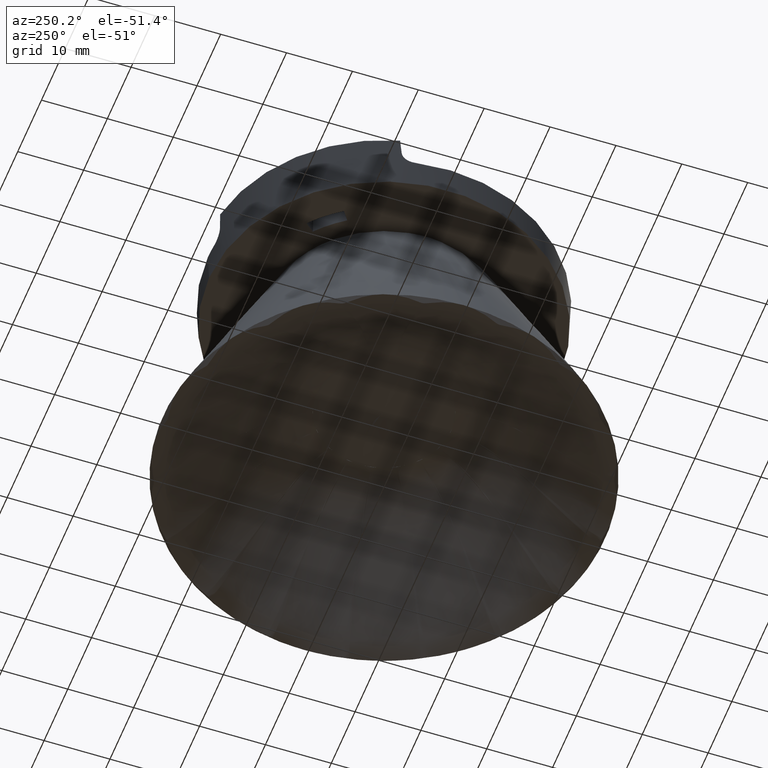
[diagram: clean part render]
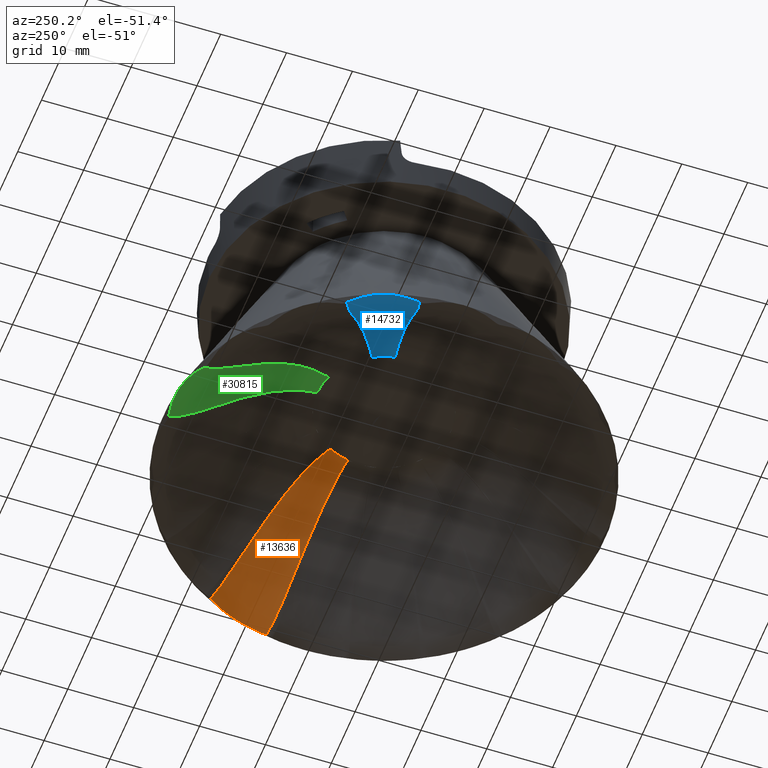
[diagram: same view with three faces highlighted in distinct colors, each labeled with its STEP entity id]
A machine part, auxiliary view with three faces highlighted in distinct colors.
Their STEP definitions:

[orange] entity #13636 — the highlighted face is a freeform B-spline surface patch.
#535 = CARTESIAN_POINT ( 'NONE',  ( 23.58123781146841600, -4.334185287929386700, 32.24962824037048400 ) ) ;
#632 = CARTESIAN_POINT ( 'NONE',  ( 10.60070841466913700, -1.988380848953729800, 24.10555495026253700 ) ) ;
#916 = VERTEX_POINT ( 'NONE', #26648 ) ;
#1146 = CARTESIAN_POINT ( 'NONE',  ( 27.17988131277490600, -8.109022413117987300, 37.81186950525385300 ) ) ;
#1346 = B_SPLINE_CURVE_WITH_KNOTS ( 'NONE', 3,
 ( #2800, #17037, #5210, #21820, #7600, #24223, #9988, #26590 ),
 .UNSPECIFIED., .F., .F.,
 ( 4, 2, 2, 4 ),
 ( 0.0007042587947961072200, 0.003373889748254508800, 0.004708705224983712700, 0.006043520701712917100 ),
 .UNSPECIFIED. ) ;
#1505 = CARTESIAN_POINT ( 'NONE',  ( 20.85018081101468100, -11.83751816375395000, 32.24956834300660100 ) ) ;
#1615 = CARTESIAN_POINT ( 'NONE',  ( 28.77713235196742400, -16.00863592587846500, 39.61515855658609600 ) ) ;
#2800 = CARTESIAN_POINT ( 'NONE',  ( 32.33471514826145900, -6.234257525220351100, 39.61515855658606700 ) ) ;
#2830 = CARTESIAN_POINT ( 'NONE',  ( 31.80912414234364500, -6.107643533814600000, 39.39180819655563700 ) ) ;
#2932 = CARTESIAN_POINT ( 'NONE',  ( 21.03219458561637000, -3.839103660257502200, 29.90732477501512300 ) ) ;
#3079 = VERTEX_POINT ( 'NONE', #18777 ) ;
#3334 = CARTESIAN_POINT ( 'NONE',  ( 29.31692109980526700, -16.30960618003984300, 39.79966890645383200 ) ) ;
#3552 = CARTESIAN_POINT ( 'NONE',  ( 15.05238420941136600, -13.56635157188961400, 25.69935888278798700 ) ) ;
#3617 = ORIENTED_EDGE ( 'NONE', *, *, #7662, .T. ) ;
#3799 = CARTESIAN_POINT ( 'NONE',  ( 10.63719521302469000, -6.022486237975413400, 24.42143948671519400 ) ) ;
#3899 = CARTESIAN_POINT ( 'NONE',  ( 30.10669219288953600, -14.23625910929125000, 39.21594549743795700 ) ) ;
#3906 = CARTESIAN_POINT ( 'NONE',  ( 23.07450769714963100, -13.04976545807081800, 34.66040913184517800 ) ) ;
#4384 = B_SPLINE_CURVE_WITH_KNOTS ( 'NONE', 3,
 ( #5447, #26820, #29210, #14991 ),
 .UNSPECIFIED., .F., .F.,
 ( 4, 4 ),
 ( 0.003603191525028641600, 0.005255104246981508200 ),
 .UNSPECIFIED. ) ;
#4565 = VERTEX_POINT ( 'NONE', #20241 ) ;
#4954 = CARTESIAN_POINT ( 'NONE',  ( 10.01613857177079800, -1.893099987472324900, 24.05268427374969400 ) ) ;
#4991 = EDGE_CURVE ( 'NONE', #21506, #916, #20814, .T. ) ;
#5210 = CARTESIAN_POINT ( 'NONE',  ( 32.28608939052563900, -7.985780494205993600, 39.27271433132516900 ) ) ;
#5243 = CARTESIAN_POINT ( 'NONE',  ( 31.06557714103936600, -5.930804997304113300, 38.96838497587685900 ) ) ;
#5343 = CARTESIAN_POINT ( 'NONE',  ( 18.36243551743603000, -3.338796146777106800, 27.73796040772611000 ) ) ;
#5344 = B_SPLINE_CURVE_WITH_KNOTS ( 'NONE', 3,
 ( #14698, #7425, #2830, #19447, #5243, #21851, #7632, #24256, #10017, #26622, #12425, #29014, #14799, #535, #17170, #2932, #19541, #5343, #21954, #7727, #24366, #10116, #26725, #12525, #29114, #14896, #632, #17272 ),
 .UNSPECIFIED., .F., .F.,
 ( 4, 2, 2, 2, 2, 2, 2, 2, 2, 2, 2, 2, 2, 4 ),
 ( 3.054599421857722200E-015, 0.0008735591537225678700, 0.001747118307442081100, 0.003494236614881127300, 0.005241354922320174400, 0.006988473229759221500, 0.01048270984463732700, 0.01397694645951543300, 0.01747118307439353800, 0.02096541968927164200, 0.02445965630414974700, 0.02533321545786927600, 0.02620677461158880900, 0.02795389291902785500 ),
 .UNSPECIFIED. ) ;
#5447 = CARTESIAN_POINT ( 'NONE',  ( 9.578729867164941700, -3.486372553724706300, 24.00000000000000700 ) ) ;
#5958 = CARTESIAN_POINT ( 'NONE',  ( 19.22683317822757600, -4.201495205270015600, 24.15589425697404400 ) ) ;
#6208 = CARTESIAN_POINT ( 'NONE',  ( 11.36676140154576600, -6.450963717008436400, 24.68382078541617700 ) ) ;
#6302 = CARTESIAN_POINT ( 'NONE',  ( 29.33776683937193800, -15.32850778267536600, 39.43405280220462600 ) ) ;
#6309 = CARTESIAN_POINT ( 'NONE',  ( 24.57775515147004700, -13.85314865600067300, 36.25082046820406800 ) ) ;
#7266 = CARTESIAN_POINT ( 'NONE',  ( 32.33471514826145900, -6.234257525220351100, 39.61515855658606700 ) ) ;
#7425 = CARTESIAN_POINT ( 'NONE',  ( 32.06616762095419700, -6.169710524205501500, 39.51463087704377100 ) ) ;
#7600 = CARTESIAN_POINT ( 'NONE',  ( 31.98919345195513100, -9.734854467256139900, 39.07060055067080400 ) ) ;
#7632 = CARTESIAN_POINT ( 'NONE',  ( 29.89582663420910400, -5.660643713724200900, 38.13769535461055000 ) ) ;
#7662 = EDGE_CURVE ( 'NONE', #10335, #30432, #5344, .T. ) ;
#7727 = CARTESIAN_POINT ( 'NONE',  ( 15.49812456704798400, -2.821772950559395400, 25.86045026769084700 ) ) ;
#8340 = CARTESIAN_POINT ( 'NONE',  ( 6.676605875591334000, -9.327040927758231300, 24.95773928514176300 ) ) ;
#8587 = CARTESIAN_POINT ( 'NONE',  ( 12.79699367743076800, -7.286516325008920000, 25.32035916953118700 ) ) ;
#8684 = CARTESIAN_POINT ( 'NONE',  ( 28.77713235196742400, -16.00863592587846500, 39.61515855658609600 ) ) ;
#8690 = CARTESIAN_POINT ( 'NONE',  ( 25.73609110549788400, -14.46323035835526800, 37.40672678806227200 ) ) ;
#9988 = CARTESIAN_POINT ( 'NONE',  ( 31.63213588854109300, -11.03886832257551700, 39.00000000000022700 ) ) ;
#10017 = CARTESIAN_POINT ( 'NONE',  ( 28.58153484237364900, -5.369241417079118500, 37.02631597382379200 ) ) ;
#10116 = CARTESIAN_POINT ( 'NONE',  ( 13.12961632227454700, -2.411576193466406200, 24.78370212819588400 ) ) ;
#10335 = VERTEX_POINT ( 'NONE', #7266 ) ;
#10730 = CARTESIAN_POINT ( 'NONE',  ( 10.23644045449318100, -1.340995399503654300, 23.64152275277331600 ) ) ;
#10975 = CARTESIAN_POINT ( 'NONE',  ( 15.39443663191066800, -8.780232541091754300, 27.06859308905874100 ) ) ;
#11082 = CARTESIAN_POINT ( 'NONE',  ( 26.95419923423019200, -15.09310302408643300, 38.48944996035230300 ) ) ;
#11644 = CARTESIAN_POINT ( 'NONE',  ( 9.378385520408317100, -4.003604689518998500, 24.00443321388629100 ) ) ;
#12425 = CARTESIAN_POINT ( 'NONE',  ( 27.31347506584100100, -5.097237316595835600, 35.85557279947833100 ) ) ;
#12525 = CARTESIAN_POINT ( 'NONE',  ( 12.29883422492369000, -2.270837905217384400, 24.50264204973599300 ) ) ;
#13033 = CARTESIAN_POINT ( 'NONE',  ( 32.94167726925994800, -6.350670453434303500, 39.79966890645382400 ) ) ;
#13080 = CARTESIAN_POINT ( 'NONE',  ( 9.398821855009835200, -5.290876295713387900, 24.10556549297108500 ) ) ;
#13384 = CARTESIAN_POINT ( 'NONE',  ( 17.80511594915394400, -10.14458259758352700, 29.15699180343180400 ) ) ;
#13443 = B_SPLINE_CURVE_WITH_KNOTS ( 'NONE', 3,
 ( #15740, #20399, #18140, #3899, #20503, #6302, #22922, #8684 ),
 .UNSPECIFIED., .F., .F.,
 ( 4, 2, 2, 4 ),
 ( 0.006043520701712917100, 0.008711661790270469600, 0.01004573233454924800, 0.01137980287882802600 ),
 .UNSPECIFIED. ) ;
#13489 = CARTESIAN_POINT ( 'NONE',  ( 27.83305285831654900, -15.53763333760335800, 39.11879068411893500 ) ) ;
#13636 = ADVANCED_FACE ( 'NONE', ( #16638 ), #21928, .F. ) ;
#14039 = CARTESIAN_POINT ( 'NONE',  ( 9.578729867164941700, -3.486372553724706300, 24.00000000000000700 ) ) ;
#14698 = CARTESIAN_POINT ( 'NONE',  ( 32.33471514826145900, -6.234257525220351100, 39.61515855658606700 ) ) ;
#14799 = CARTESIAN_POINT ( 'NONE',  ( 25.24148790923805000, -4.667079821109254600, 33.85203765495944600 ) ) ;
#14896 = CARTESIAN_POINT ( 'NONE',  ( 11.17381668612598300, -2.082800818295177200, 24.20771523157614200 ) ) ;
#14991 = CARTESIAN_POINT ( 'NONE',  ( 10.01613857177079800, -1.893099987472324900, 24.05268427374969400 ) ) ;
#15403 = CARTESIAN_POINT ( 'NONE',  ( 26.03337617810723600, -11.25901938190620300, 37.81186950525386000 ) ) ;
#15740 = CARTESIAN_POINT ( 'NONE',  ( 31.47970279632792400, -11.45767480140992900, 38.99999999999999300 ) ) ;
#15745 = CARTESIAN_POINT ( 'NONE',  ( 20.10311897467315100, -11.42547741462235900, 31.45464014280847200 ) ) ;
#15850 = CARTESIAN_POINT ( 'NONE',  ( 28.52992114135844300, -15.88546184884897400, 39.51463012185126200 ) ) ;
#16010 = EDGE_CURVE ( 'NONE', #3079, #4565, #13443, .T. ) ;
#16278 = EDGE_LOOP ( 'NONE', ( #19037, #16932, #19506, #17247, #3617, #29599 ) ) ;
#16638 = FACE_OUTER_BOUND ( 'NONE', #16278, .T. ) ;
#16932 = ORIENTED_EDGE ( 'NONE', *, *, #30109, .T. ) ;
#17037 = CARTESIAN_POINT ( 'NONE',  ( 32.34404056949392000, -7.110543537654221400, 39.42616226214710200 ) ) ;
#17170 = CARTESIAN_POINT ( 'NONE',  ( 22.74410873319006800, -4.169626165260536000, 31.45470646478207400 ) ) ;
#17247 = ORIENTED_EDGE ( 'NONE', *, *, #27201, .F. ) ;
#17272 = CARTESIAN_POINT ( 'NONE',  ( 10.01613857177079800, -1.893099987472324900, 24.05268427374969400 ) ) ;
#17785 = CARTESIAN_POINT ( 'NONE',  ( 27.83315849157892400, -4.971976570634796000, 38.79631210744405200 ) ) ;
#18037 = CARTESIAN_POINT ( 'NONE',  ( 9.898638054073527900, -5.586990998616513200, 24.20775589380851000 ) ) ;
#18140 = CARTESIAN_POINT ( 'NONE',  ( 30.79134762752819300, -13.09292086038745100, 39.05641079755716300 ) ) ;
#18148 = CARTESIAN_POINT ( 'NONE',  ( 22.33599815262789100, -12.64970097109247000, 33.85198921249785500 ) ) ;
#18159 = CARTESIAN_POINT ( 'NONE',  ( 8.889668510259639300, -4.988051045165919500, 24.05268427374970100 ) ) ;
#18777 = CARTESIAN_POINT ( 'NONE',  ( 31.47970279632792400, -11.45767480140992900, 38.99999999999999300 ) ) ;
#19037 = ORIENTED_EDGE ( 'NONE', *, *, #4991, .F. ) ;
#19447 = CARTESIAN_POINT ( 'NONE',  ( 31.30876108114065600, -5.988225599462595900, 39.11879499834946500 ) ) ;
#19506 = ORIENTED_EDGE ( 'NONE', *, *, #16010, .F. ) ;
#19541 = CARTESIAN_POINT ( 'NONE',  ( 20.16040139439979500, -3.673721681205678500, 29.15705687887681900 ) ) ;
#20155 = CARTESIAN_POINT ( 'NONE',  ( 17.42927777506177400, -9.140238085686677400, 24.15589425697404700 ) ) ;
#20241 = CARTESIAN_POINT ( 'NONE',  ( 28.77713235196742400, -16.00863592587846500, 39.61515855658609600 ) ) ;
#20399 = CARTESIAN_POINT ( 'NONE',  ( 31.17500675132044600, -12.29482030486732600, 38.99999999999952400 ) ) ;
#20405 = CARTESIAN_POINT ( 'NONE',  ( 10.88150907791744400, -6.166204182549604300, 24.50277541826164900 ) ) ;
#20503 = CARTESIAN_POINT ( 'NONE',  ( 29.85911198496304000, -14.60990048272229400, 39.28191040472658800 ) ) ;
#20509 = CARTESIAN_POINT ( 'NONE',  ( 24.19974560421478300, -13.65203641183038900, 35.85554007028120800 ) ) ;
#20814 = B_SPLINE_CURVE_WITH_KNOTS ( 'NONE', 3,
 ( #23481, #21066, #25855, #11644, #28241, #14039 ),
 .UNSPECIFIED., .F., .F.,
 ( 4, 2, 4 ),
 ( 0.001960043688144315700, 0.002781617606586478600, 0.003603191525028641600 ),
 .UNSPECIFIED. ) ;
#21066 = CARTESIAN_POINT ( 'NONE',  ( 9.023502159957313800, -4.749533682260513400, 24.03518703873789500 ) ) ;
#21506 = VERTEX_POINT ( 'NONE', #18159 ) ;
#21820 = CARTESIAN_POINT ( 'NONE',  ( 32.07859336858187000, -9.297701618410270500, 39.11233206393357900 ) ) ;
#21851 = CARTESIAN_POINT ( 'NONE',  ( 30.34978821484982700, -5.763840834263536500, 38.48946012115826700 ) ) ;
#21928 =( BOUNDED_SURFACE ( )  B_SPLINE_SURFACE ( 3, 3, ( 
 ( #3334, #22155, #27241, #13033 ),
 ( #29618, #15403, #1146, #17785 ),
 ( #3552, #20155, #5958, #22571 ),
 ( #8340, #24962, #10730, #27344 ) ),
 .UNSPECIFIED., .F., .F., .F. ) 
 B_SPLINE_SURFACE_WITH_KNOTS ( ( 4, 4 ),
 ( 4, 4 ),
 ( 0.0000000000000000000, 1.009796491166671000 ),
 ( 0.0000000000000000000, 1.000000000000000000 ),
 .UNSPECIFIED. ) 
 GEOMETRIC_REPRESENTATION_ITEM ( )  RATIONAL_B_SPLINE_SURFACE ( (
 ( 1.000000000000000000, 0.9640303269292722600, 0.9640303269292722600, 1.000000000000000000),
 ( 1.000000000000000000, 0.9640303269292722600, 0.9640303269292722600, 1.000000000000000000),
 ( 1.000000000000000000, 0.9640303269292722600, 0.9640303269292722600, 1.000000000000000000),
 ( 1.000000000000000000, 0.9640303269292722600, 0.9640303269292722600, 1.000000000000000000) ) ) 
 REPRESENTATION_ITEM ( '' )  SURFACE ( )  );
#21954 = CARTESIAN_POINT ( 'NONE',  ( 17.43663041182062300, -3.169301486349152400, 27.06857575763391200 ) ) ;
#22155 = CARTESIAN_POINT ( 'NONE',  ( 30.97419502266384900, -13.22352669953538000, 38.72349801172713800 ) ) ;
#22571 = CARTESIAN_POINT ( 'NONE',  ( 20.25107797837357600, 0.7169421689934494200, 25.69935888278797600 ) ) ;
#22822 = CARTESIAN_POINT ( 'NONE',  ( 11.60852822050259400, -6.592488528732934200, 24.78392812430973200 ) ) ;
#22922 = CARTESIAN_POINT ( 'NONE',  ( 29.06358542020510400, -15.67454009266800900, 39.52024679499542300 ) ) ;
#22928 = CARTESIAN_POINT ( 'NONE',  ( 25.34598443002990100, -14.25876664276642100, 37.02629301832496400 ) ) ;
#23481 = CARTESIAN_POINT ( 'NONE',  ( 8.889668510259639300, -4.988051045165919500, 24.05268427374970100 ) ) ;
#24223 = CARTESIAN_POINT ( 'NONE',  ( 31.76516706679911900, -10.60893816736709100, 39.01414237198093800 ) ) ;
#24256 = CARTESIAN_POINT ( 'NONE',  ( 29.01179772869976900, -5.463368286599187100, 37.40674647053544500 ) ) ;
#24366 = CARTESIAN_POINT ( 'NONE',  ( 14.48642781130688700, -2.643897176952927400, 25.32018400032549400 ) ) ;
#24962 = CARTESIAN_POINT ( 'NONE',  ( 8.703543554930387700, -5.552595017404416700, 23.64152275277331900 ) ) ;
#25213 = CARTESIAN_POINT ( 'NONE',  ( 13.68622288719574500, -7.800496749812873900, 25.86056381161558100 ) ) ;
#25312 = CARTESIAN_POINT ( 'NONE',  ( 26.54010803908282100, -14.88035431896220300, 38.13768209047805200 ) ) ;
#25855 = CARTESIAN_POINT ( 'NONE',  ( 9.148111050132074600, -4.505000520953837300, 24.02204281210947600 ) ) ;
#26590 = CARTESIAN_POINT ( 'NONE',  ( 31.47970279632792400, -11.45767480140992900, 38.99999999999999300 ) ) ;
#26622 = CARTESIAN_POINT ( 'NONE',  ( 27.73231669847499200, -5.186155693599176600, 36.25084994244011200 ) ) ;
#26648 = CARTESIAN_POINT ( 'NONE',  ( 9.578729867164941700, -3.486372553724706300, 24.00000000000000700 ) ) ;
#26725 = CARTESIAN_POINT ( 'NONE',  ( 12.85349352518501200, -2.364595077372658100, 24.68362932533163700 ) ) ;
#26820 = CARTESIAN_POINT ( 'NONE',  ( 9.768536711463260900, -2.964882534957136200, 24.00000000000000000 ) ) ;
#27201 = EDGE_CURVE ( 'NONE', #10335, #3079, #1346, .T. ) ;
#27241 = CARTESIAN_POINT ( 'NONE',  ( 32.22752909601560100, -9.780019633968345600, 38.72349801172713800 ) ) ;
#27344 = CARTESIAN_POINT ( 'NONE',  ( 11.10988317329449500, 2.853288341861968100, 24.95773928514175200 ) ) ;
#27587 = CARTESIAN_POINT ( 'NONE',  ( 16.21255308875267100, -9.245465324302969600, 27.73794022378509500 ) ) ;
#27695 = CARTESIAN_POINT ( 'NONE',  ( 27.60985235769010500, -15.42530365337167600, 38.96837926281055100 ) ) ;
#28241 = CARTESIAN_POINT ( 'NONE',  ( 9.484329993161374300, -3.745734075948887300, 24.00000000000000400 ) ) ;
#29014 = CARTESIAN_POINT ( 'NONE',  ( 26.06436941188687200, -4.835316315318035400, 34.66045141062136300 ) ) ;
#29114 = CARTESIAN_POINT ( 'NONE',  ( 12.01935229419003900, -2.223899594496183200, 24.42133202144576000 ) ) ;
#29167 = EDGE_CURVE ( 'NONE', #916, #30432, #4384, .T. ) ;
#29210 = CARTESIAN_POINT ( 'NONE',  ( 9.913962714229603200, -2.433698769678533500, 24.01748694282373400 ) ) ;
#29599 = ORIENTED_EDGE ( 'NONE', *, *, #29167, .F. ) ;
#29618 = CARTESIAN_POINT ( 'NONE',  ( 24.51736133217962200, -14.08205439357613500, 38.79631210744405900 ) ) ;
#29768 = CARTESIAN_POINT ( 'NONE',  ( 8.889668510259639300, -4.988051045165919500, 24.05268427374970100 ) ) ;
#29976 = CARTESIAN_POINT ( 'NONE',  ( 18.57925001311887000, -10.57826869360670800, 29.90725176803502100 ) ) ;
#30080 = CARTESIAN_POINT ( 'NONE',  ( 28.29311681750141000, -15.76778271262564800, 39.39180635792560300 ) ) ;
#30109 = EDGE_CURVE ( 'NONE', #21506, #4565, #30842, .T. ) ;
#30432 = VERTEX_POINT ( 'NONE', #4954 ) ;
#30842 = B_SPLINE_CURVE_WITH_KNOTS ( 'NONE', 3,
 ( #29768, #13080, #18037, #3799, #20405, #6208, #22822, #8587, #25213, #10975, #27587, #13384, #29976, #15745, #1505, #18148, #3906, #20509, #6309, #22928, #8690, #25312, #11082, #27695, #13489, #30080, #15850, #1615 ),
 .UNSPECIFIED., .F., .F.,
 ( 4, 2, 2, 2, 2, 2, 2, 2, 2, 2, 2, 2, 2, 4 ),
 ( 5.725566454429946000E-016, 0.001767011362761893400, 0.002650517044142555700, 0.003534022725523217800, 0.007068045451045865800, 0.01060206817656851400, 0.01413609090209116300, 0.01767011362761380200, 0.02120413635313644600, 0.02297114771589776500, 0.02473815907865908200, 0.02650517044142039800, 0.02738867612280106200, 0.02827218180418172200 ),
 .UNSPECIFIED. ) ;

[blue] entity #14732 — the highlighted face is a freeform B-spline surface patch.
#32 = CARTESIAN_POINT ( 'NONE',  ( -8.889668510259646400, -4.988051045165893700, 24.05268427374969100 ) ) ;
#271 = CARTESIAN_POINT ( 'NONE',  ( -32.32700813850849600, -7.115634811996768500, 39.43405280220450500 ) ) ;
#542 = CARTESIAN_POINT ( 'NONE',  ( -32.22752909601562300, -9.780019633968235500, 38.72349801172714500 ) ) ;
#618 = ORIENTED_EDGE ( 'NONE', *, *, #17387, .F. ) ;
#640 = CARTESIAN_POINT ( 'NONE',  ( -8.703543554930391200, -5.552595017404424700, 23.64152275277334100 ) ) ;
#825 = CARTESIAN_POINT ( 'NONE',  ( -18.36240675865891700, -3.338790911103859800, 27.73794022378509500 ) ) ;
#833 = CARTESIAN_POINT ( 'NONE',  ( -28.29312037764224300, -15.76778448404905000, 39.39180819655562300 ) ) ;
#932 = CARTESIAN_POINT ( 'NONE',  ( -31.06556803798384400, -5.930802853709555400, 38.96837926281060000 ) ) ;
#942 = CARTESIAN_POINT ( 'NONE',  ( -22.33604263135381300, -12.64972511555724200, 33.85203765495942500 ) ) ;
#1053 = CARTESIAN_POINT ( 'NONE',  ( -9.898438740282063700, -5.586872925771764600, 24.20771523157612700 ) ) ;
#1137 = B_SPLINE_CURVE_WITH_KNOTS ( 'NONE', 3,
 ( #19746, #3135, #22159, #7930, #24559, #10321, #26934, #12736, #29315, #15102, #825, #17477, #3239, #19850, #5655, #22262, #8034, #24655, #10421, #27034, #12843, #29422, #15206, #932, #17581, #3339, #19951, #5758 ),
 .UNSPECIFIED., .F., .F.,
 ( 4, 2, 2, 2, 2, 2, 2, 2, 2, 2, 2, 2, 2, 4 ),
 ( 5.473135041052578600E-016, 0.001767011362761870400, 0.002650517044142533200, 0.003534022725523196600, 0.007068045451045845900, 0.01060206817656850600, 0.01413609090209116400, 0.01767011362761382300, 0.02120413635313648000, 0.02297114771589781400, 0.02473815907865914100, 0.02650517044142047100, 0.02738867612280114100, 0.02827218180418181200 ),
 .UNSPECIFIED. ) ;
#1264 = VERTEX_POINT ( 'NONE', #13492 ) ;
#1503 = CARTESIAN_POINT ( 'NONE',  ( -29.34754183041652500, -15.34335616069372100, 39.42616226214712300 ) ) ;
#2082 = B_SPLINE_CURVE_WITH_KNOTS ( 'NONE', 3,
 ( #23995, #7366, #12152, #28741, #14531, #271, #16904, #2661 ),
 .UNSPECIFIED., .F., .F.,
 ( 4, 2, 2, 4 ),
 ( 0.006043520701712949200, 0.008711661790270178200, 0.01004573233454879100, 0.01137980287882740500 ),
 .UNSPECIFIED. ) ;
#2498 = CARTESIAN_POINT ( 'NONE',  ( -9.388923022866638500, -4.007862572492221900, 24.00000000000000700 ) ) ;
#2661 = CARTESIAN_POINT ( 'NONE',  ( -32.33471514826149500, -6.234257525220726000, 39.61515855658593200 ) ) ;
#2937 = CARTESIAN_POINT ( 'NONE',  ( -29.31692109980537400, -16.30960618003965100, 39.79966890645384600 ) ) ;
#3135 = CARTESIAN_POINT ( 'NONE',  ( -10.60082498116425700, -1.988399848490167900, 24.10556549297108100 ) ) ;
#3239 = CARTESIAN_POINT ( 'NONE',  ( -21.03211127805334600, -3.839087755144311200, 29.90725176803504200 ) ) ;
#3247 = CARTESIAN_POINT ( 'NONE',  ( -28.77713235196752700, -16.00863592587826600, 39.61515855658608100 ) ) ;
#3339 = CARTESIAN_POINT ( 'NONE',  ( -31.80912027646853300, -6.107642602389328000, 39.39180635792559600 ) ) ;
#3349 = CARTESIAN_POINT ( 'NONE',  ( -20.10318214480842900, -11.42551233327649200, 31.45470646478203800 ) ) ;
#3452 = CARTESIAN_POINT ( 'NONE',  ( -8.889668510259646400, -4.988051045165893700, 24.05268427374969100 ) ) ;
#3605 = CARTESIAN_POINT ( 'NONE',  ( -9.903618151489544300, -2.429261819736585200, 24.02204281210946500 ) ) ;
#3904 = CARTESIAN_POINT ( 'NONE',  ( -30.55007559195210500, -13.49726969493553100, 39.11233206393358600 ) ) ;
#3956 = EDGE_CURVE ( 'NONE', #15997, #10906, #15639, .T. ) ;
#4491 = CARTESIAN_POINT ( 'NONE',  ( -31.47970279632800200, -11.45767480140971300, 38.99999999999999300 ) ) ;
#5151 = ORIENTED_EDGE ( 'NONE', *, *, #23906, .F. ) ;
#5218 = EDGE_CURVE ( 'NONE', #1264, #17796, #30375, .T. ) ;
#5350 = CARTESIAN_POINT ( 'NONE',  ( -27.17988131277493100, -8.109022413117909200, 37.81186950525385300 ) ) ;
#5655 = CARTESIAN_POINT ( 'NONE',  ( -23.58117515340417100, -4.334172875380511800, 32.24956834300659400 ) ) ;
#5664 = CARTESIAN_POINT ( 'NONE',  ( -27.83305966648987000, -15.53763675298205600, 39.11879499834942900 ) ) ;
#5758 = CARTESIAN_POINT ( 'NONE',  ( -32.33471514826149500, -6.234257525220726000, 39.61515855658593200 ) ) ;
#5767 = CARTESIAN_POINT ( 'NONE',  ( -17.80518623734392500, -10.14462214317396700, 29.15705687887680100 ) ) ;
#6012 = CARTESIAN_POINT ( 'NONE',  ( -9.673129741168534000, -3.227011031500471600, 24.00000000000000400 ) ) ;
#6308 = CARTESIAN_POINT ( 'NONE',  ( -31.15282372218170100, -12.29133767965680900, 39.01414237198095900 ) ) ;
#7236 = EDGE_LOOP ( 'NONE', ( #8182, #22864, #618, #28831, #26847, #5151 ) ) ;
#7307 = CARTESIAN_POINT ( 'NONE',  ( -8.889668510259646400, -4.988051045165893700, 24.05268427374969100 ) ) ;
#7366 = CARTESIAN_POINT ( 'NONE',  ( -31.78439884133688800, -10.62052929795291000, 38.99999999999951700 ) ) ;
#7736 = CARTESIAN_POINT ( 'NONE',  ( -24.51736133217971400, -14.08205439357598000, 38.79631210744406600 ) ) ;
#7930 = CARTESIAN_POINT ( 'NONE',  ( -12.01974381658762100, -2.223965168387553400, 24.42143948671516900 ) ) ;
#8034 = CARTESIAN_POINT ( 'NONE',  ( -26.06432594487093000, -4.835307334183250200, 34.66040913184519900 ) ) ;
#8039 = CARTESIAN_POINT ( 'NONE',  ( -26.95421208429351300, -15.09310957900603400, 38.48946012115821000 ) ) ;
#8149 = CARTESIAN_POINT ( 'NONE',  ( -15.39442156048097300, -8.780224191215232600, 27.06857575763390500 ) ) ;
#8182 = ORIENTED_EDGE ( 'NONE', *, *, #5218, .F. ) ;
#8289 = CARTESIAN_POINT ( 'NONE',  ( -10.01613857177081500, -1.893099987472288900, 24.05268427374970100 ) ) ;
#8688 = CARTESIAN_POINT ( 'NONE',  ( -31.47970279632800200, -11.45767480140971300, 38.99999999999999300 ) ) ;
#10015 = B_SPLINE_CURVE_WITH_KNOTS ( 'NONE', 3,
 ( #15744, #1503, #18146, #3904, #20507, #6308, #22926, #8688 ),
 .UNSPECIFIED., .F., .F.,
 ( 4, 2, 2, 4 ),
 ( 0.0007042587947960922500, 0.003373889748254519700, 0.004708705224983734400, 0.006043520701712949200 ),
 .UNSPECIFIED. ) ;
#10124 = CARTESIAN_POINT ( 'NONE',  ( -19.22683317822755100, -4.201495205270046700, 24.15589425697403000 ) ) ;
#10321 = CARTESIAN_POINT ( 'NONE',  ( -12.85404395574386000, -2.364688483000204000, 24.68382078541618400 ) ) ;
#10421 = CARTESIAN_POINT ( 'NONE',  ( -27.73228506934548300, -5.186148937643931600, 36.25082046820408300 ) ) ;
#10430 = CARTESIAN_POINT ( 'NONE',  ( -25.73611187674262300, -14.46324119807839800, 37.40674647053543800 ) ) ;
#10535 = CARTESIAN_POINT ( 'NONE',  ( -12.79671187212635500, -7.286353565143898000, 25.32018400032549700 ) ) ;
#10906 = VERTEX_POINT ( 'NONE', #32 ) ;
#11810 = VERTEX_POINT ( 'NONE', #11864 ) ;
#11864 = CARTESIAN_POINT ( 'NONE',  ( -32.33471514826149500, -6.234257525220726000, 39.61515855658593200 ) ) ;
#12152 = CARTESIAN_POINT ( 'NONE',  ( -32.00350804987619600, -9.762537471229803600, 39.05641079755714900 ) ) ;
#12533 = CARTESIAN_POINT ( 'NONE',  ( -15.05238420941146400, -13.56635157188953200, 25.69935888278798700 ) ) ;
#12736 = CARTESIAN_POINT ( 'NONE',  ( -14.48674830671897200, -2.643953636620562300, 25.32035916953119100 ) ) ;
#12843 = CARTESIAN_POINT ( 'NONE',  ( -29.01177484936344800, -5.463363238810185200, 37.40672678806228600 ) ) ;
#12851 = CARTESIAN_POINT ( 'NONE',  ( -24.57778372343327800, -13.85316381145121900, 36.25084994244007700 ) ) ;
#12952 = CARTESIAN_POINT ( 'NONE',  ( -11.36627970729467300, -6.450681459927222900, 24.68362932533163700 ) ) ;
#13297 = EDGE_CURVE ( 'NONE', #15997, #13909, #10015, .T. ) ;
#13492 = CARTESIAN_POINT ( 'NONE',  ( -10.01613857177081500, -1.893099987472288900, 24.05268427374970100 ) ) ;
#13909 = VERTEX_POINT ( 'NONE', #4491 ) ;
#14531 = CARTESIAN_POINT ( 'NONE',  ( -32.26446982159546900, -8.001234140866641200, 39.28191040472651700 ) ) ;
#14732 = ADVANCED_FACE ( 'NONE', ( #17346 ), #30673, .F. ) ;
#14904 = CARTESIAN_POINT ( 'NONE',  ( -10.23644045449313800, -1.340995399503718900, 23.64152275277332300 ) ) ;
#15102 = CARTESIAN_POINT ( 'NONE',  ( -17.43664732440275200, -3.169304777700865400, 27.06859308905870900 ) ) ;
#15206 = CARTESIAN_POINT ( 'NONE',  ( -30.34977415770914200, -5.763837595761818200, 38.48944996035236000 ) ) ;
#15214 = CARTESIAN_POINT ( 'NONE',  ( -23.07454676777787100, -13.04978651818163700, 34.66045141062131300 ) ) ;
#15317 = CARTESIAN_POINT ( 'NONE',  ( -10.63685313938269600, -6.022284804744437300, 24.42133202144574300 ) ) ;
#15639 = B_SPLINE_CURVE_WITH_KNOTS ( 'NONE', 3,
 ( #3247, #21547, #833, #5664, #22271, #8039, #24663, #10430, #27045, #12851, #29430, #15214, #942, #17589, #3349, #19960, #5767, #22374, #8149, #24773, #10535, #27150, #12952, #29533, #15317, #1053, #17690, #3452 ),
 .UNSPECIFIED., .F., .F.,
 ( 4, 2, 2, 2, 2, 2, 2, 2, 2, 2, 2, 2, 2, 4 ),
 ( 3.092851907529170300E-015, 0.0008735591537226063600, 0.001747118307442122100, 0.003494236614881167200, 0.005241354922320211700, 0.006988473229759257000, 0.01048270984463736000, 0.01397694645951546400, 0.01747118307439355900, 0.02096541968927165600, 0.02445965630414975400, 0.02533321545786928000, 0.02620677461158880600, 0.02795389291902785100 ),
 .UNSPECIFIED. ) ;
#15744 = CARTESIAN_POINT ( 'NONE',  ( -28.77713235196752700, -16.00863592587826600, 39.61515855658608100 ) ) ;
#15997 = VERTEX_POINT ( 'NONE', #22815 ) ;
#16631 = CARTESIAN_POINT ( 'NONE',  ( -9.578729867164966500, -3.486372553724633500, 24.00000000000000400 ) ) ;
#16904 = CARTESIAN_POINT ( 'NONE',  ( -32.33939826736378400, -6.674318264740619200, 39.52024679499532300 ) ) ;
#17175 = CARTESIAN_POINT ( 'NONE',  ( -30.97419502266389900, -13.22352669953522800, 38.72349801172716600 ) ) ;
#17281 = CARTESIAN_POINT ( 'NONE',  ( -6.676605875591391700, -9.327040927758194000, 24.95773928514177000 ) ) ;
#17346 = FACE_OUTER_BOUND ( 'NONE', #7236, .T. ) ;
#17387 = EDGE_CURVE ( 'NONE', #13909, #11810, #2082, .T. ) ;
#17477 = CARTESIAN_POINT ( 'NONE',  ( -20.16032213110687400, -3.673706794507889000, 29.15699180343182200 ) ) ;
#17581 = CARTESIAN_POINT ( 'NONE',  ( -31.30875367041423400, -5.988223839585093500, 39.11879068411894200 ) ) ;
#17589 = CARTESIAN_POINT ( 'NONE',  ( -20.85023678850923500, -11.83754893101717600, 32.24962824037047000 ) ) ;
#17690 = CARTESIAN_POINT ( 'NONE',  ( -9.398720347227362400, -5.290815922703929500, 24.10555495026253000 ) ) ;
#17796 = VERTEX_POINT ( 'NONE', #21241 ) ;
#18146 = CARTESIAN_POINT ( 'NONE',  ( -29.86574012300687300, -14.63563545390732800, 39.27271433132516900 ) ) ;
#19549 = CARTESIAN_POINT ( 'NONE',  ( -27.83315849157893500, -4.971976570634754300, 38.79631210744401000 ) ) ;
#19746 = CARTESIAN_POINT ( 'NONE',  ( -10.01613857177081500, -1.893099987472288900, 24.05268427374970100 ) ) ;
#19850 = CARTESIAN_POINT ( 'NONE',  ( -22.74403789678074300, -4.169612309521323100, 31.45464014280850100 ) ) ;
#19951 = CARTESIAN_POINT ( 'NONE',  ( -32.06616560355248400, -6.169710039310814400, 39.51463012185293200 ) ) ;
#19960 = CARTESIAN_POINT ( 'NONE',  ( -18.57932405402432300, -10.57831005865236100, 29.90732477501507700 ) ) ;
#20212 = CARTESIAN_POINT ( 'NONE',  ( -9.757727601842033100, -2.961370886530966000, 24.00443321388627600 ) ) ;
#20507 = CARTESIAN_POINT ( 'NONE',  ( -30.76258771738222500, -13.10492602556884600, 39.07060055067083200 ) ) ;
#21241 = CARTESIAN_POINT ( 'NONE',  ( -9.578729867164966500, -3.486372553724633500, 24.00000000000000400 ) ) ;
#21521 = CARTESIAN_POINT ( 'NONE',  ( -9.158887461383081100, -4.508250976863355900, 24.01748694282372300 ) ) ;
#21547 = CARTESIAN_POINT ( 'NONE',  ( -28.52992299846565400, -15.88546277416062800, 39.51463087704379300 ) ) ;
#21960 = CARTESIAN_POINT ( 'NONE',  ( -26.03337617810728900, -11.25901938190607700, 37.81186950525387400 ) ) ;
#22159 = CARTESIAN_POINT ( 'NONE',  ( -11.17404526510996900, -2.082838485684115300, 24.20775589380849300 ) ) ;
#22262 = CARTESIAN_POINT ( 'NONE',  ( -25.24143831679443700, -4.667069726468429100, 33.85198921249786300 ) ) ;
#22271 = CARTESIAN_POINT ( 'NONE',  ( -27.60986070891128100, -15.42530786261425600, 38.96838497587681600 ) ) ;
#22374 = CARTESIAN_POINT ( 'NONE',  ( -16.21257848467998700, -9.245479799330118100, 27.73796040772609600 ) ) ;
#22527 = CARTESIAN_POINT ( 'NONE',  ( -9.965345089853350700, -2.161841499698169900, 24.03518703873788800 ) ) ;
#22626 = CARTESIAN_POINT ( 'NONE',  ( -9.578729867164966500, -3.486372553724633500, 24.00000000000000400 ) ) ;
#22815 = CARTESIAN_POINT ( 'NONE',  ( -28.77713235196752700, -16.00863592587826600, 39.61515855658608100 ) ) ;
#22864 = ORIENTED_EDGE ( 'NONE', *, *, #26717, .T. ) ;
#22926 = CARTESIAN_POINT ( 'NONE',  ( -31.32726970411416200, -11.87648128024384200, 39.00000000000022700 ) ) ;
#23906 = EDGE_CURVE ( 'NONE', #17796, #10906, #29748, .T. ) ;
#23995 = CARTESIAN_POINT ( 'NONE',  ( -31.47970279632800200, -11.45767480140971300, 38.99999999999999300 ) ) ;
#24374 = CARTESIAN_POINT ( 'NONE',  ( -20.25107797837353400, 0.7169421689933640500, 25.69935888278790500 ) ) ;
#24559 = CARTESIAN_POINT ( 'NONE',  ( -12.29927920922756200, -2.270912760797661400, 24.50277541826164200 ) ) ;
#24655 = CARTESIAN_POINT ( 'NONE',  ( -27.31344049751576400, -5.097230001414863500, 35.85554007028121500 ) ) ;
#24663 = CARTESIAN_POINT ( 'NONE',  ( -26.54012350761617300, -14.88036228043150200, 38.13769535461053600 ) ) ;
#24773 = CARTESIAN_POINT ( 'NONE',  ( -13.68605289332105600, -7.800398956557459400, 25.86045026769082600 ) ) ;
#26631 = CARTESIAN_POINT ( 'NONE',  ( -32.94167726925995500, -6.350670453434236900, 39.79966890645378200 ) ) ;
#26717 = EDGE_CURVE ( 'NONE', #1264, #11810, #1137, .T. ) ;
#26730 = CARTESIAN_POINT ( 'NONE',  ( -17.42927777506180200, -9.140238085686643600, 24.15589425697406200 ) ) ;
#26847 = ORIENTED_EDGE ( 'NONE', *, *, #3956, .T. ) ;
#26934 = CARTESIAN_POINT ( 'NONE',  ( -13.13021847937602100, -2.411678903074023300, 24.78392812430973500 ) ) ;
#27034 = CARTESIAN_POINT ( 'NONE',  ( -28.58150905538657200, -5.369235794509633800, 37.02629301832496400 ) ) ;
#27045 = CARTESIAN_POINT ( 'NONE',  ( -25.34600779812606300, -14.25877891118404200, 37.02631597382375600 ) ) ;
#27150 = CARTESIAN_POINT ( 'NONE',  ( -11.60800092093782300, -6.592180149733329700, 24.78370212819589800 ) ) ;
#28741 = CARTESIAN_POINT ( 'NONE',  ( -32.21395521879610200, -8.446601528761549500, 39.21594549743788600 ) ) ;
#28831 = ORIENTED_EDGE ( 'NONE', *, *, #13297, .F. ) ;
#29121 = CARTESIAN_POINT ( 'NONE',  ( -11.10988317329443300, 2.853288341861854900, 24.95773928514169900 ) ) ;
#29315 = CARTESIAN_POINT ( 'NONE',  ( -15.49831765020391400, -2.821807306535849300, 25.86056381161556300 ) ) ;
#29422 = CARTESIAN_POINT ( 'NONE',  ( -29.89580966709128200, -5.660639869582030100, 38.13768209047807300 ) ) ;
#29430 = CARTESIAN_POINT ( 'NONE',  ( -24.19977678719599000, -13.65205302816774100, 35.85557279947829600 ) ) ;
#29533 = CARTESIAN_POINT ( 'NONE',  ( -10.88112008392457000, -6.165975494853943100, 24.50264204973598600 ) ) ;
#29748 = B_SPLINE_CURVE_WITH_KNOTS ( 'NONE', 3,
 ( #16631, #2498, #21521, #7307 ),
 .UNSPECIFIED., .F., .F.,
 ( 4, 4 ),
 ( 0.003603191525028643800, 0.005255104246981515100 ),
 .UNSPECIFIED. ) ;
#30375 = B_SPLINE_CURVE_WITH_KNOTS ( 'NONE', 3,
 ( #8289, #22527, #3605, #20212, #6012, #22626 ),
 .UNSPECIFIED., .F., .F.,
 ( 4, 2, 4 ),
 ( 0.001960043688144310500, 0.002781617606586477300, 0.003603191525028643800 ),
 .UNSPECIFIED. ) ;
#30673 =( BOUNDED_SURFACE ( )  B_SPLINE_SURFACE ( 3, 3, ( 
 ( #26631, #542, #17175, #2937 ),
 ( #19549, #5350, #21960, #7736 ),
 ( #24374, #10124, #26730, #12533 ),
 ( #29121, #14904, #640, #17281 ) ),
 .UNSPECIFIED., .F., .F., .F. ) 
 B_SPLINE_SURFACE_WITH_KNOTS ( ( 4, 4 ),
 ( 4, 4 ),
 ( 0.0000000000000000000, 1.009796491166671000 ),
 ( 0.0000000000000000000, 1.000000000000000000 ),
 .UNSPECIFIED. ) 
 GEOMETRIC_REPRESENTATION_ITEM ( )  RATIONAL_B_SPLINE_SURFACE ( (
 ( 1.000000000000000000, 0.9640303269292731500, 0.9640303269292731500, 1.000000000000000000),
 ( 1.000000000000000000, 0.9640303269292731500, 0.9640303269292731500, 1.000000000000000000),
 ( 1.000000000000000000, 0.9640303269292731500, 0.9640303269292731500, 1.000000000000000000),
 ( 1.000000000000000000, 0.9640303269292731500, 0.9640303269292731500, 1.000000000000000000) ) ) 
 REPRESENTATION_ITEM ( '' )  SURFACE ( )  );

[green] entity #30815 — the highlighted face is a freeform B-spline surface patch.
#581 = CARTESIAN_POINT ( 'NONE',  ( -1.770077735000100900, -10.03860967781592500, 24.00000000000000000 ) ) ;
#1101 = CARTESIAN_POINT ( 'NONE',  ( -4.032095005832703200, -33.19364546218458400, 39.07060055067083900 ) ) ;
#1551 =( BOUNDED_SURFACE ( )  B_SPLINE_SURFACE ( 3, 3, ( 
 ( #25697, #4308, #28083, #13874 ),
 ( #30458, #16239, #2004, #18617 ),
 ( #4409, #21008, #6807, #23416 ),
 ( #9184, #25795, #11575, #28183 ) ),
 .UNSPECIFIED., .F., .F., .F. ) 
 B_SPLINE_SURFACE_WITH_KNOTS ( ( 4, 4 ),
 ( 4, 4 ),
 ( 0.0000000000000000000, 1.009796491166670600 ),
 ( 0.0000000000000000000, 1.000000000000000000 ),
 .UNSPECIFIED. ) 
 GEOMETRIC_REPRESENTATION_ITEM ( )  RATIONAL_B_SPLINE_SURFACE ( (
 ( 1.000000000000000000, 0.9640303269292730400, 0.9640303269292730400, 1.000000000000000000),
 ( 1.000000000000000000, 0.9640303269292730400, 0.9640303269292730400, 1.000000000000000000),
 ( 1.000000000000000000, 0.9640303269292730400, 0.9640303269292730400, 1.000000000000000000),
 ( 1.000000000000000000, 0.9640303269292730400, 0.9640303269292730400, 1.000000000000000000) ) ) 
 REPRESENTATION_ITEM ( '' )  SURFACE ( )  );
#1566 = CARTESIAN_POINT ( 'NONE',  ( -3.368596604830361100, -9.620780444714863900, 24.05268427374969800 ) ) ;
#1731 = CARTESIAN_POINT ( 'NONE',  ( -0.4462218842358094400, -31.62349470017415600, 38.96838497587683000 ) ) ;
#1832 = CARTESIAN_POINT ( 'NONE',  ( -0.09946886594419324100, -18.66324472824694100, 27.73796040772609200 ) ) ;
#2004 = CARTESIAN_POINT ( 'NONE',  ( -3.266091282621594000, -28.17507480747058700, 37.81186950525387400 ) ) ;
#2191 = CARTESIAN_POINT ( 'NONE',  ( -6.898637655454066000, -19.29620451127016900, 29.15699180343182200 ) ) ;
#2293 = CARTESIAN_POINT ( 'NONE',  ( -10.46842286657883200, -30.10828795920055300, 39.11879068411896300 ) ) ;
#3506 = CARTESIAN_POINT ( 'NONE',  ( -5.378300355795637700, -33.06845203509138300, 39.00000000000024200 ) ) ;
#3553 = CARTESIAN_POINT ( 'NONE',  ( -2.314241383157538100, -9.931125429669284800, 24.00443321388629100 ) ) ;
#4134 = CARTESIAN_POINT ( 'NONE',  ( -0.3832900014385951500, -30.42460231738792900, 38.13769535461054300 ) ) ;
#4240 = CARTESIAN_POINT ( 'NONE',  ( -0.08768279062816110300, -15.75266896143227800, 25.86045026769082600 ) ) ;
#4308 = CARTESIAN_POINT ( 'NONE',  ( -7.644019095480716800, -32.79986871533579800, 38.72349801172714500 ) ) ;
#4409 = CARTESIAN_POINT ( 'NONE',  ( -10.74642912057938400, -17.17947689879440900, 25.69935888278795100 ) ) ;
#4605 = CARTESIAN_POINT ( 'NONE',  ( -7.761028764412606600, -21.78172075800878800, 31.45464014280851500 ) ) ;
#4706 = CARTESIAN_POINT ( 'NONE',  ( -10.68995717374917300, -30.85496903429059400, 39.51463012185293900 ) ) ;
#4950 = ORIENTED_EDGE ( 'NONE', *, *, #29675, .F. ) ;
#5201 = CARTESIAN_POINT ( 'NONE',  ( -6.694551247004374000, -32.83636148959085000, 38.99999999999952400 ) ) ;
#5959 = CARTESIAN_POINT ( 'NONE',  ( -1.770077735000100900, -10.03860967781592500, 24.00000000000000000 ) ) ;
#6200 = CARTESIAN_POINT ( 'NONE',  ( -10.76833218355532700, -31.11981350513832500, 39.61515855658597500 ) ) ;
#6466 = CARTESIAN_POINT ( 'NONE',  ( -3.783231591972565900, -10.71842630546457700, 24.20775589380851000 ) ) ;
#6530 = CARTESIAN_POINT ( 'NONE',  ( -0.3245391350317902700, -29.07967609328768100, 37.02631597382374900 ) ) ;
#6633 = CARTESIAN_POINT ( 'NONE',  ( -0.09500498447638305900, -13.34891375955197300, 24.78370212819588000 ) ) ;
#6807 = CARTESIAN_POINT ( 'NONE',  ( -0.7989605086882491900, -19.66431636566235900, 24.15589425697406900 ) ) ;
#7000 = CARTESIAN_POINT ( 'NONE',  ( -8.578918214042270000, -24.19326167363613300, 33.85198921249789800 ) ) ;
#7612 = B_SPLINE_CURVE_WITH_KNOTS ( 'NONE', 3,
 ( #581, #21900, #14844, #17216 ),
 .UNSPECIFIED., .F., .F.,
 ( 4, 4 ),
 ( 0.003603191525028639400, 0.005255104246981437100 ),
 .UNSPECIFIED. ) ;
#8163 = EDGE_CURVE ( 'NONE', #19975, #23298, #19411, .T. ) ;
#8799 = CARTESIAN_POINT ( 'NONE',  ( -0.5077471859376785400, -32.65036947176549400, 39.51463087704377100 ) ) ;
#8903 = CARTESIAN_POINT ( 'NONE',  ( -0.2768636573923827800, -27.78364797770856500, 35.85557279947832400 ) ) ;
#9008 = CARTESIAN_POINT ( 'NONE',  ( -0.1006686243064052900, -12.50631416173470700, 24.50264204973597500 ) ) ;
#9162 = EDGE_LOOP ( 'NONE', ( #30640, #18046, #24015, #4950, #23311, #20362 ) ) ;
#9184 = CARTESIAN_POINT ( 'NONE',  ( -8.025961775021622600, -8.194796890219329600, 24.95773928514172700 ) ) ;
#9272 = CARTESIAN_POINT ( 'NONE',  ( -4.182971463984703300, -11.78694462382773600, 24.50277541826165600 ) ) ;
#9376 = CARTESIAN_POINT ( 'NONE',  ( -9.242389578600446900, -26.20274833631077300, 35.85554007028129300 ) ) ;
#10076 = CARTESIAN_POINT ( 'NONE',  ( -8.792006109846136400, -32.12140434023248000, 39.21594549743793600 ) ) ;
#10615 = EDGE_CURVE ( 'NONE', #14621, #17050, #7612, .T. ) ;
#11311 = CARTESIAN_POINT ( 'NONE',  ( -0.2130380147142444900, -25.66844289654323300, 33.85203765495943900 ) ) ;
#11405 = CARTESIAN_POINT ( 'NONE',  ( -0.1108454887072642300, -11.36573586977419800, 24.20771523157612400 ) ) ;
#11575 = CARTESIAN_POINT ( 'NONE',  ( 0.4569165645338952300, -10.31378733021625900, 23.64152275277334100 ) ) ;
#11676 = CARTESIAN_POINT ( 'NONE',  ( -4.476534043854843300, -12.57694221191659300, 24.78392812430974600 ) ) ;
#11785 = CARTESIAN_POINT ( 'NONE',  ( -9.640859930739232200, -27.43693081771457500, 37.02629301832499200 ) ) ;
#12489 = CARTESIAN_POINT ( 'NONE',  ( -10.00118355801218900, -31.55382768229303300, 39.43405280220454800 ) ) ;
#12995 = CARTESIAN_POINT ( 'NONE',  ( -1.386034700735002700, -33.08739484411405100, 39.42616226214710200 ) ) ;
#13105 = CARTESIAN_POINT ( 'NONE',  ( -0.5246807842369302100, -32.92604562781005500, 39.61515855658608100 ) ) ;
#13709 = CARTESIAN_POINT ( 'NONE',  ( -0.1568071405342708100, -23.12262260094809100, 31.45470646478206700 ) ) ;
#13814 = CARTESIAN_POINT ( 'NONE',  ( -0.1250553346427048200, -10.19270428369036600, 24.05268427374969400 ) ) ;
#13874 = CARTESIAN_POINT ( 'NONE',  ( -0.5339272722686312400, -33.54400152319530500, 39.79966890645382400 ) ) ;
#14069 = CARTESIAN_POINT ( 'NONE',  ( -5.305402013057350700, -14.83284045426528900, 25.86056381161558800 ) ) ;
#14172 = CARTESIAN_POINT ( 'NONE',  ( -10.04564690481253700, -28.72085057319649300, 38.13768209047808700 ) ) ;
#14621 = VERTEX_POINT ( 'NONE', #16564 ) ;
#14844 = CARTESIAN_POINT ( 'NONE',  ( -0.6751838580919111700, -10.18595470039219100, 24.01748694282373000 ) ) ;
#14858 = CARTESIAN_POINT ( 'NONE',  ( -10.76833218355532700, -31.11981350513832500, 39.61515855658597500 ) ) ;
#15359 = CARTESIAN_POINT ( 'NONE',  ( -3.586059358432092100, -33.20577639763324400, 39.11233206393360000 ) ) ;
#15976 = CARTESIAN_POINT ( 'NONE',  ( -0.4605416903876566900, -31.87295511271931400, 39.11879499834945100 ) ) ;
#16074 = CARTESIAN_POINT ( 'NONE',  ( -0.1170926308891142700, -20.49205467223989500, 29.15705687887681600 ) ) ;
#16239 = CARTESIAN_POINT ( 'NONE',  ( -6.567321246769956200, -27.59297889526798300, 37.81186950525386700 ) ) ;
#16243 = FACE_OUTER_BOUND ( 'NONE', #9162, .T. ) ;
#16248 = CARTESIAN_POINT ( 'NONE',  ( -3.368596604830361100, -9.620780444714863900, 24.05268427374969800 ) ) ;
#16430 = CARTESIAN_POINT ( 'NONE',  ( -6.289725632388877100, -17.57170618317366000, 27.73794022378509900 ) ) ;
#16532 = CARTESIAN_POINT ( 'NONE',  ( -10.39655808284220300, -29.86897253074270300, 38.96837926281061500 ) ) ;
#16564 = CARTESIAN_POINT ( 'NONE',  ( -1.770077735000100900, -10.03860967781592500, 24.00000000000000000 ) ) ;
#17050 = VERTEX_POINT ( 'NONE', #24619 ) ;
#17216 = CARTESIAN_POINT ( 'NONE',  ( -0.1250553346427048200, -10.19270428369036600, 24.05268427374969400 ) ) ;
#17743 = CARTESIAN_POINT ( 'NONE',  ( -4.931801184015244900, -33.12480558285624000, 39.01414237198095900 ) ) ;
#17786 = CARTESIAN_POINT ( 'NONE',  ( -2.848006627409246600, -9.791415818438924400, 24.02204281210947600 ) ) ;
#18046 = ORIENTED_EDGE ( 'NONE', *, *, #23885, .T. ) ;
#18363 = CARTESIAN_POINT ( 'NONE',  ( -0.4060897246252352400, -30.88958719349473000, 38.48946012115823800 ) ) ;
#18462 = CARTESIAN_POINT ( 'NONE',  ( -0.09331357972543341500, -17.72207224355101100, 27.06857575763390500 ) ) ;
#18617 = CARTESIAN_POINT ( 'NONE',  ( -0.06326382377876138600, -28.27368494421790500, 38.79631210744406600 ) ) ;
#18812 = CARTESIAN_POINT ( 'NONE',  ( -7.191308115713950700, -20.13388653958753600, 29.90725176803505300 ) ) ;
#18911 = CARTESIAN_POINT ( 'NONE',  ( -10.61518648732900900, -30.60132753265109800, 39.39180635792561700 ) ) ;
#19411 = B_SPLINE_CURVE_WITH_KNOTS ( 'NONE', 3,
 ( #24328, #5201, #26481, #10076, #26688, #12489, #29075, #14858 ),
 .UNSPECIFIED., .F., .F.,
 ( 4, 2, 2, 4 ),
 ( 0.006043520701713106200, 0.008711661790270317000, 0.01004573233454891800, 0.01137980287882751900 ),
 .UNSPECIFIED. ) ;
#19975 = VERTEX_POINT ( 'NONE', #25424 ) ;
#20114 = CARTESIAN_POINT ( 'NONE',  ( -5.817213951842287400, -32.99105972590895400, 38.99999999999999300 ) ) ;
#20156 = CARTESIAN_POINT ( 'NONE',  ( -2.041891339012221100, -9.990681605704990500, 24.00000000000001400 ) ) ;
#20362 = ORIENTED_EDGE ( 'NONE', *, *, #10615, .F. ) ;
#20670 = CARTESIAN_POINT ( 'NONE',  ( -3.578407708908479800, -10.17478365900605500, 24.10556549297109200 ) ) ;
#20737 = CARTESIAN_POINT ( 'NONE',  ( -0.3425216397736706700, -29.51974727893672000, 37.40674647053543800 ) ) ;
#20834 = CARTESIAN_POINT ( 'NONE',  ( -0.08818864769329916300, -14.72545434874329300, 25.32018400032548300 ) ) ;
#21008 = CARTESIAN_POINT ( 'NONE',  ( -5.974815007471440800, -18.75167356930558100, 24.15589425697405800 ) ) ;
#21207 = CARTESIAN_POINT ( 'NONE',  ( -8.037083762229112700, -22.58898317162870100, 32.24956834300663600 ) ) ;
#21306 = CARTESIAN_POINT ( 'NONE',  ( -10.76833218355532700, -31.11981350513832500, 39.61515855658597500 ) ) ;
#21539 = EDGE_CURVE ( 'NONE', #22744, #17050, #26345, .T. ) ;
#21900 = CARTESIAN_POINT ( 'NONE',  ( -1.223550708778221400, -10.13497713822521000, 24.00000000000000700 ) ) ;
#22744 = VERTEX_POINT ( 'NONE', #13105 ) ;
#23083 = CARTESIAN_POINT ( 'NONE',  ( -4.083861575338386500, -11.52138607633964900, 24.42143948671519400 ) ) ;
#23141 = CARTESIAN_POINT ( 'NONE',  ( -0.2917000782125870300, -28.21156697893853900, 36.25084994244007700 ) ) ;
#23250 = CARTESIAN_POINT ( 'NONE',  ( -0.09668583762902599500, -13.06882770300034700, 24.68362932533163000 ) ) ;
#23298 = VERTEX_POINT ( 'NONE', #6200 ) ;
#23311 = ORIENTED_EDGE ( 'NONE', *, *, #21539, .T. ) ;
#23416 = CARTESIAN_POINT ( 'NONE',  ( 4.222612993221543900, -19.81892289881882600, 25.69935888278798700 ) ) ;
#23624 = CARTESIAN_POINT ( 'NONE',  ( -8.844663985927573100, -24.99002206786770200, 34.66040913184524900 ) ) ;
#23885 = EDGE_CURVE ( 'NONE', #25076, #23298, #24987, .T. ) ;
#23913 = B_SPLINE_CURVE_WITH_KNOTS ( 'NONE', 3,
 ( #29620, #29524, #17786, #3553, #20156, #5959 ),
 .UNSPECIFIED., .F., .F.,
 ( 4, 2, 4 ),
 ( 0.001960043688144341700, 0.002781617606586490400, 0.003603191525028639400 ),
 .UNSPECIFIED. ) ;
#24015 = ORIENTED_EDGE ( 'NONE', *, *, #8163, .F. ) ;
#24328 = CARTESIAN_POINT ( 'NONE',  ( -5.817213951842287400, -32.99105972590895400, 38.99999999999999300 ) ) ;
#24619 = CARTESIAN_POINT ( 'NONE',  ( -0.1250553346427048200, -10.19270428369036600, 24.05268427374969400 ) ) ;
#24820 = CARTESIAN_POINT ( 'NONE',  ( -0.5246807842369302100, -32.92604562781005500, 39.61515855658608100 ) ) ;
#24987 = B_SPLINE_CURVE_WITH_KNOTS ( 'NONE', 3,
 ( #1566, #20670, #6466, #23083, #9272, #25890, #11676, #28273, #14069, #30654, #16430, #2191, #18812, #4605, #21207, #7000, #23624, #9376, #25988, #11785, #28376, #14172, #30757, #16532, #2293, #18911, #4706, #21306 ),
 .UNSPECIFIED., .F., .F.,
 ( 4, 2, 2, 2, 2, 2, 2, 2, 2, 2, 2, 2, 2, 4 ),
 ( 5.649490286289777100E-016, 0.001767011362761898400, 0.002650517044142561800, 0.003534022725523224300, 0.007068045451045875400, 0.01060206817656853300, 0.01413609090209118900, 0.01767011362761384400, 0.02120413635313650500, 0.02297114771589783800, 0.02473815907865917200, 0.02650517044142050600, 0.02738867612280118000, 0.02827218180418185300 ),
 .UNSPECIFIED. ) ;
#25076 = VERTEX_POINT ( 'NONE', #16248 ) ;
#25424 = CARTESIAN_POINT ( 'NONE',  ( -5.817213951842287400, -32.99105972590895400, 38.99999999999999300 ) ) ;
#25430 = CARTESIAN_POINT ( 'NONE',  ( -0.5246807842369302100, -32.92604562781005500, 39.61515855658608100 ) ) ;
#25533 = CARTESIAN_POINT ( 'NONE',  ( -0.2358267451798701800, -26.50803694079856500, 34.66045141062134100 ) ) ;
#25635 = CARTESIAN_POINT ( 'NONE',  ( -0.1029749399577312800, -12.22292743740189800, 24.42133202144574300 ) ) ;
#25697 = CARTESIAN_POINT ( 'NONE',  ( -10.97099669089267900, -31.70366458516463800, 39.79966890645380300 ) ) ;
#25795 = CARTESIAN_POINT ( 'NONE',  ( -3.956884144918338300, -9.535515177669649800, 23.64152275277333000 ) ) ;
#25890 = CARTESIAN_POINT ( 'NONE',  ( -4.379141679557218200, -12.31427284853615600, 24.68382078541619500 ) ) ;
#25988 = CARTESIAN_POINT ( 'NONE',  ( -9.374805806863427900, -26.60993784386706900, 36.25082046820411100 ) ) ;
#26345 = B_SPLINE_CURVE_WITH_KNOTS ( 'NONE', 3,
 ( #25430, #8799, #30200, #15976, #1731, #18363, #4134, #20737, #6530, #23141, #8903, #25533, #11311, #27914, #13709, #30301, #16074, #1832, #18462, #4240, #20834, #6633, #23250, #9008, #25635, #11405, #28020, #13814 ),
 .UNSPECIFIED., .F., .F.,
 ( 4, 2, 2, 2, 2, 2, 2, 2, 2, 2, 2, 2, 2, 4 ),
 ( 3.089577947972978900E-015, 0.0008735591537226157900, 0.001747118307442142000, 0.003494236614881188500, 0.005241354922320234200, 0.006988473229759281300, 0.01048270984463736700, 0.01397694645951545400, 0.01747118307439354800, 0.02096541968927163900, 0.02445965630414973600, 0.02533321545786925900, 0.02620677461158878200, 0.02795389291902782700 ),
 .UNSPECIFIED. ) ;
#26481 = CARTESIAN_POINT ( 'NONE',  ( -7.547148569455663900, -32.59711971702746100, 39.05641079755718400 ) ) ;
#26688 = CARTESIAN_POINT ( 'NONE',  ( -9.202962883179926800, -31.94246757557137100, 39.28191040472653800 ) ) ;
#27914 = CARTESIAN_POINT ( 'NONE',  ( -0.1735003014523540900, -23.97560919927845500, 32.24962824037048400 ) ) ;
#28020 = CARTESIAN_POINT ( 'NONE',  ( -0.1173791778048998300, -10.78493854511658000, 24.10555495026254700 ) ) ;
#28083 = CARTESIAN_POINT ( 'NONE',  ( -4.035187461912625100, -33.43620310116807600, 38.72349801172715200 ) ) ;
#28183 = CARTESIAN_POINT ( 'NONE',  ( 4.739151447780059800, -10.44563076319768800, 24.95773928514175600 ) ) ;
#28273 = CARTESIAN_POINT ( 'NONE',  ( -4.953643137617754100, -13.86786887016017100, 25.32035916953120100 ) ) ;
#28376 = CARTESIAN_POINT ( 'NONE',  ( -9.774476069770027900, -27.85661564782831000, 37.40672678806227200 ) ) ;
#29075 = CARTESIAN_POINT ( 'NONE',  ( -10.38956996347407200, -31.34389957500979000, 39.52024679499536600 ) ) ;
#29524 = CARTESIAN_POINT ( 'NONE',  ( -3.110462887232572800, -9.711162755140607700, 24.03518703873789200 ) ) ;
#29579 = CARTESIAN_POINT ( 'NONE',  ( -2.258037957891511700, -33.18230737630184300, 39.27271433132518300 ) ) ;
#29620 = CARTESIAN_POINT ( 'NONE',  ( -3.368596604830361100, -9.620780444714863900, 24.05268427374969800 ) ) ;
#29675 = EDGE_CURVE ( 'NONE', #22744, #19975, #30633, .T. ) ;
#30200 = CARTESIAN_POINT ( 'NONE',  ( -0.4912582642364695700, -32.38645324139390200, 39.39180819655562300 ) ) ;
#30301 = CARTESIAN_POINT ( 'NONE',  ( -0.1285767871106659700, -21.37932164525453900, 29.90732477501511600 ) ) ;
#30346 = EDGE_CURVE ( 'NONE', #25076, #14621, #23913, .T. ) ;
#30458 = CARTESIAN_POINT ( 'NONE',  ( -9.610721228598729100, -26.59021060658330200, 38.79631210744403800 ) ) ;
#30633 = B_SPLINE_CURVE_WITH_KNOTS ( 'NONE', 3,
 ( #24820, #12995, #29579, #15359, #1101, #17743, #3506, #20114 ),
 .UNSPECIFIED., .F., .F.,
 ( 4, 2, 2, 4 ),
 ( 0.0007042587947961367100, 0.003373889748254620700, 0.004708705224983863700, 0.006043520701713106200 ),
 .UNSPECIFIED. ) ;
#30640 = ORIENTED_EDGE ( 'NONE', *, *, #30346, .F. ) ;
#30654 = CARTESIAN_POINT ( 'NONE',  ( -5.973625212377020200, -16.68523192861319900, 27.06859308905874400 ) ) ;
#30757 = CARTESIAN_POINT ( 'NONE',  ( -10.18325729763700400, -29.16559421757750700, 38.48944996035238100 ) ) ;
#30815 = ADVANCED_FACE ( 'NONE', ( #16243 ), #1551, .F. ) ;